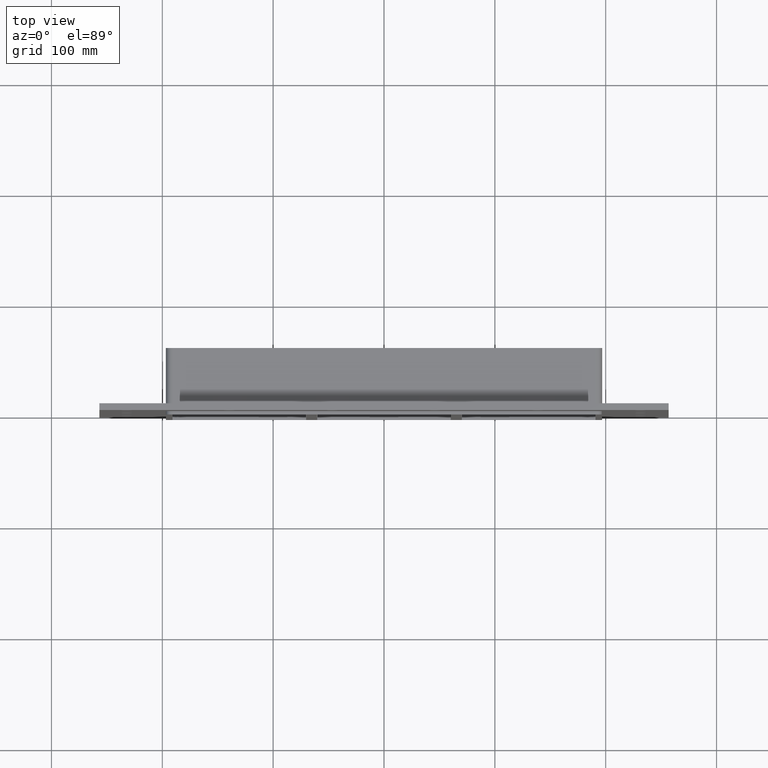
[diagram: clean part render]
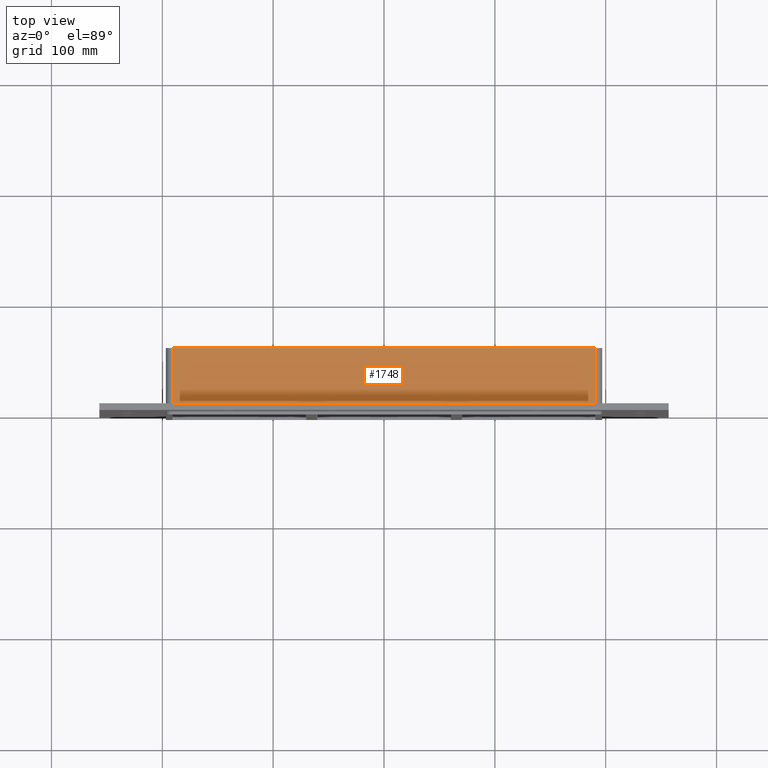
[diagram: same view with one face highlighted and labeled with its STEP entity id]
A machine part, top view. The second image highlights one B-rep face of the part: STEP entity #1748.
In plain terms, the highlighted planar face has unit normal (0, 0, 1).
Its self-contained STEP definition (entity closure, byte-faithful):
#1029=CARTESIAN_POINT('',(190.75000000000003,6.000000000000001,145.0));
#1030=VERTEX_POINT('',#1029);
#1038=CARTESIAN_POINT('',(-190.75000000000003,6.000000000000001,145.0));
#1039=VERTEX_POINT('',#1038);
#1040=CARTESIAN_POINT('',(-190.75000000000003,6.000000000000001,145.0));
#1041=DIRECTION('',(1.0,0.0,0.0));
#1042=VECTOR('',#1041,381.5);
#1043=LINE('',#1040,#1042);
#1044=EDGE_CURVE('',#1039,#1030,#1043,.T.);
#1364=CARTESIAN_POINT('',(190.75000000000003,57.0,145.0));
#1365=VERTEX_POINT('',#1364);
#1373=CARTESIAN_POINT('',(190.75000000000003,57.0,145.0));
#1374=DIRECTION('',(0.0,-1.0,0.0));
#1375=VECTOR('',#1374,51.0);
#1376=LINE('',#1373,#1375);
#1377=EDGE_CURVE('',#1365,#1030,#1376,.T.);
#1713=CARTESIAN_POINT('',(-190.75000000000003,57.0,145.0));
#1714=VERTEX_POINT('',#1713);
#1715=CARTESIAN_POINT('',(-190.75000000000003,6.000000000000001,145.0));
#1716=DIRECTION('',(0.0,1.0,0.0));
#1717=VECTOR('',#1716,51.0);
#1718=LINE('',#1715,#1717);
#1719=EDGE_CURVE('',#1039,#1714,#1718,.T.);
#1732=CARTESIAN_POINT('',(-196.75000000000006,0.0,145.0));
#1733=DIRECTION('',(0.0,0.0,1.0));
#1734=DIRECTION('',(1.0,0.0,0.0));
#1735=AXIS2_PLACEMENT_3D('',#1732,#1733,#1734);
#1736=PLANE('',#1735);
#1737=ORIENTED_EDGE('',*,*,#1044,.T.);
#1738=ORIENTED_EDGE('',*,*,#1377,.F.);
#1739=CARTESIAN_POINT('',(-190.75000000000006,57.0,145.0));
#1740=DIRECTION('',(1.0,0.0,0.0));
#1741=VECTOR('',#1740,381.50000000000006);
#1742=LINE('',#1739,#1741);
#1743=EDGE_CURVE('',#1714,#1365,#1742,.T.);
#1744=ORIENTED_EDGE('',*,*,#1743,.F.);
#1745=ORIENTED_EDGE('',*,*,#1719,.F.);
#1746=EDGE_LOOP('',(#1737,#1738,#1744,#1745));
#1747=FACE_OUTER_BOUND('',#1746,.T.);
#1748=ADVANCED_FACE('',(#1747),#1736,.T.);